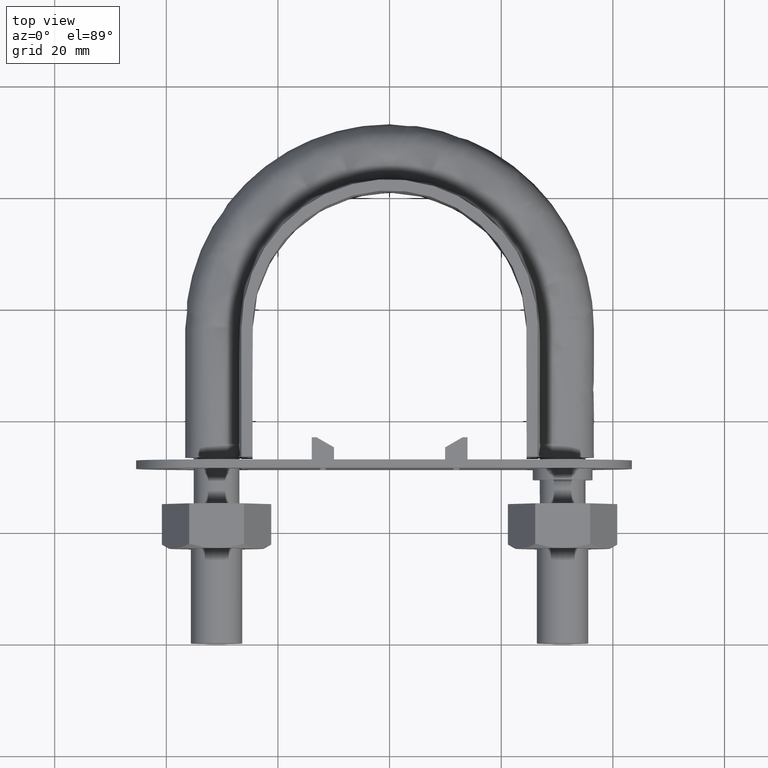
[diagram: clean part render]
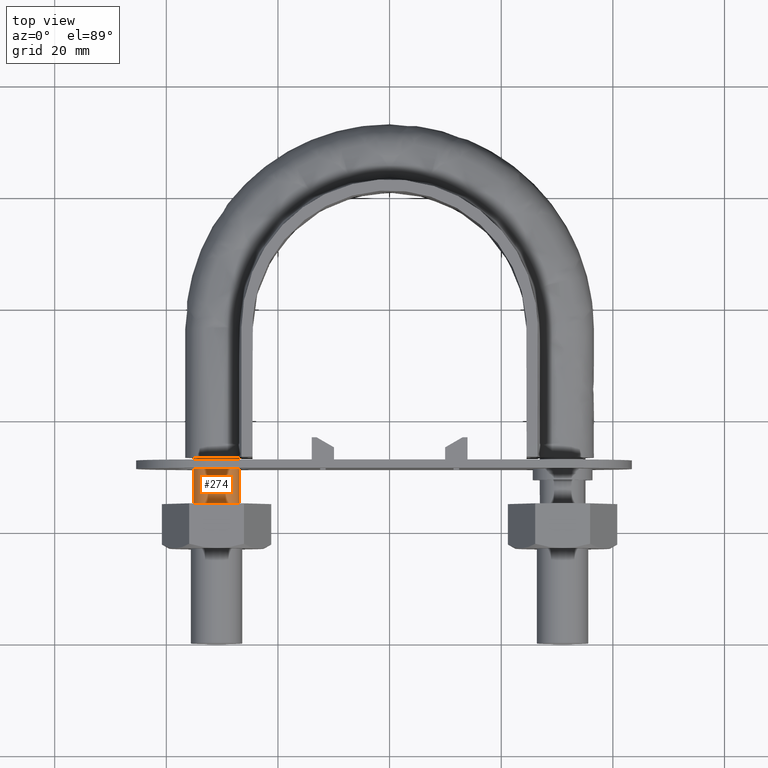
[diagram: same view with one face highlighted and labeled with its STEP entity id]
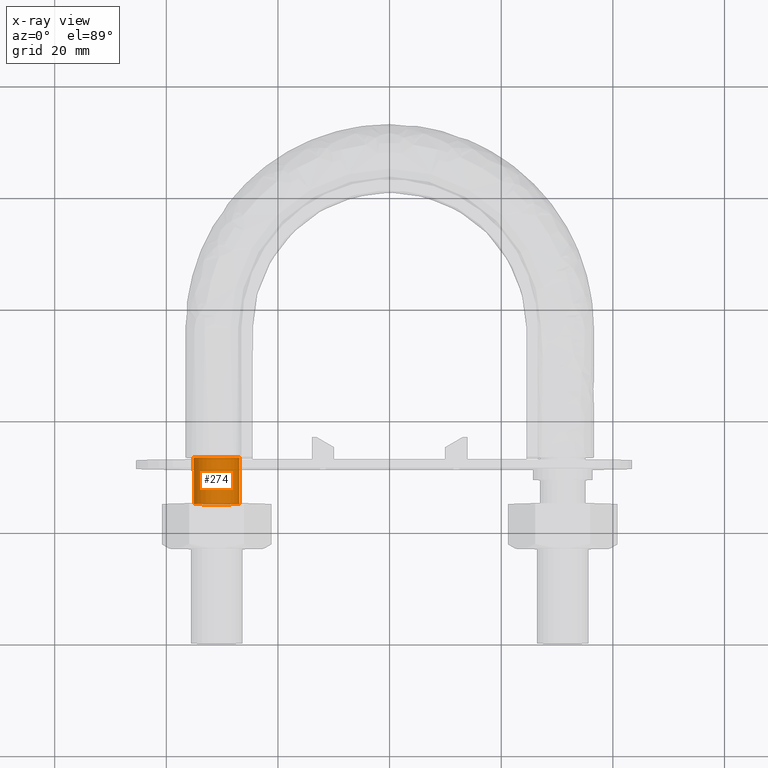
[diagram: x-ray of the same camera — body ghosted, the highlighted face saturated]
A machine part, top view. The second image highlights one B-rep face of the part: STEP entity #274.
The next image is the same camera in x-ray: the body ghosted, the highlighted face saturated — about 0% of this face is hidden behind the body in this view.
In plain terms, the highlighted cylindrical surface (bore or boss wall) has radius 4.1 mm, axis along (-0, -1, -0).
Its self-contained STEP definition (entity closure, byte-faithful):
#274 = ADVANCED_FACE( '', ( #396, #397 ), #398, .T. );
#396 = FACE_OUTER_BOUND( '', #1325, .T. );
#397 = FACE_OUTER_BOUND( '', #1326, .T. );
#398 = CYLINDRICAL_SURFACE( '', #1327, 4.10000000000000 );
#1325 = EDGE_LOOP( '', ( #1768 ) );
#1326 = EDGE_LOOP( '', ( #1769, #1770, #1771, #1772, #1773, #1774, #1775 ) );
#1327 = AXIS2_PLACEMENT_3D( '', #1776, #1777, #1778 );
#1768 = ORIENTED_EDGE( '', *, *, #2531, .T. );
#1769 = ORIENTED_EDGE( '', *, *, #2532, .T. );
#1770 = ORIENTED_EDGE( '', *, *, #2533, .T. );
#1771 = ORIENTED_EDGE( '', *, *, #2534, .T. );
#1772 = ORIENTED_EDGE( '', *, *, #2535, .T. );
#1773 = ORIENTED_EDGE( '', *, *, #2536, .T. );
#1774 = ORIENTED_EDGE( '', *, *, #2537, .T. );
#1775 = ORIENTED_EDGE( '', *, *, #2538, .T. );
#1776 = CARTESIAN_POINT( '', ( -31.0000000000000, 33.3000000000000, 1.03938464280674E-014 ) );
#1777 = DIRECTION( '', ( -2.44921270764475E-016, -1.00000000000000, -3.06151588455594E-016 ) );
#1778 = DIRECTION( '', ( 1.00000000000000, -2.44921270764475E-016, -3.74915180455534E-032 ) );
#2531 = EDGE_CURVE( '', #2775, #2775, #2776, .T. );
#2532 = EDGE_CURVE( '', #2777, #2778, #2779, .T. );
#2533 = EDGE_CURVE( '', #2778, #2780, #2781, .T. );
#2534 = EDGE_CURVE( '', #2780, #2782, #2783, .T. );
#2535 = EDGE_CURVE( '', #2782, #2784, #2785, .T. );
#2536 = EDGE_CURVE( '', #2784, #2786, #2787, .T. );
#2537 = EDGE_CURVE( '', #2786, #2788, #2789, .T. );
#2538 = EDGE_CURVE( '', #2788, #2777, #2790, .T. );
#2775 = VERTEX_POINT( '', #3361 );
#2776 = CIRCLE( '', #3362, 4.10000000000000 );
#2777 = VERTEX_POINT( '', #3363 );
#2778 = VERTEX_POINT( '', #3364 );
#2779 = CIRCLE( '', #3365, 4.10000000000000 );
#2780 = VERTEX_POINT( '', #3366 );
#2781 = CIRCLE( '', #3367, 4.10000000000000 );
#2782 = VERTEX_POINT( '', #3368 );
#2783 = CIRCLE( '', #3369, 4.10000000000000 );
#2784 = VERTEX_POINT( '', #3370 );
#2785 = CIRCLE( '', #3371, 4.10000000000000 );
#2786 = VERTEX_POINT( '', #3372 );
#2787 = CIRCLE( '', #3373, 4.10000000000000 );
#2788 = VERTEX_POINT( '', #3374 );
#2789 = CIRCLE( '', #3375, 4.10000000000000 );
#2790 = CIRCLE( '', #3376, 4.10000000000000 );
#3361 = CARTESIAN_POINT( '', ( -31.0000000000000, 25.0000000000000, 4.10000000000001 ) );
#3362 = AXIS2_PLACEMENT_3D( '', #3999, #4000, #4001 );
#3363 = CARTESIAN_POINT( '', ( -26.9000000000000, 33.3000000000000, 5.33492735711505E-014 ) );
#3364 = CARTESIAN_POINT( '', ( -28.4436918123920, 33.3000000000000, 3.20550907812911 ) );
#3365 = AXIS2_PLACEMENT_3D( '', #4002, #4003, #4004 );
#3366 = CARTESIAN_POINT( '', ( -31.9123358292377, 33.3000000000000, 3.99720443994166 ) );
#3367 = AXIS2_PLACEMENT_3D( '', #4005, #4006, #4007 );
#3368 = CARTESIAN_POINT( '', ( -34.6939723584000, 33.3000000000000, 1.77892333038180 ) );
#3369 = AXIS2_PLACEMENT_3D( '', #4008, #4009, #4010 );
#3370 = CARTESIAN_POINT( '', ( -34.6939723583862, 33.3000000000000, -1.77892333041036 ) );
#3371 = AXIS2_PLACEMENT_3D( '', #4011, #4012, #4013 );
#3372 = CARTESIAN_POINT( '', ( -31.9123358292209, 33.3000000000000, -3.99720443994546 ) );
#3373 = AXIS2_PLACEMENT_3D( '', #4014, #4015, #4016 );
#3374 = CARTESIAN_POINT( '', ( -28.4436918123794, 33.3000000000000, -3.20550907811911 ) );
#3375 = AXIS2_PLACEMENT_3D( '', #4017, #4018, #4019 );
#3376 = AXIS2_PLACEMENT_3D( '', #4020, #4021, #4022 );
#3999 = CARTESIAN_POINT( '', ( -31.0000000000000, 25.0000000000000, 7.85278824388600E-015 ) );
#4000 = DIRECTION( '', ( 2.44921270764475E-016, 1.00000000000000, 3.06151588455594E-016 ) );
#4001 = DIRECTION( '', ( -3.74915180455534E-032, -3.06151588455594E-016, 1.00000000000000 ) );
#4002 = CARTESIAN_POINT( '', ( -31.0000000000000, 33.3000000000000, 1.03938464280674E-014 ) );
#4003 = DIRECTION( '', ( -2.44921270764475E-016, -1.00000000000000, -3.06151588455594E-016 ) );
#4004 = DIRECTION( '', ( 1.00000000000000, -2.44921270764475E-016, -3.74915180455534E-032 ) );
#4005 = CARTESIAN_POINT( '', ( -31.0000000000000, 33.3000000000000, 1.03938464280674E-014 ) );
#4006 = DIRECTION( '', ( -2.44921270764475E-016, -1.00000000000000, -3.06151588455594E-016 ) );
#4007 = DIRECTION( '', ( 1.00000000000000, -2.44921270764475E-016, -3.74915180455534E-032 ) );
#4008 = CARTESIAN_POINT( '', ( -31.0000000000000, 33.3000000000000, 1.03938464280674E-014 ) );
#4009 = DIRECTION( '', ( -2.44921270764475E-016, -1.00000000000000, -3.06151588455594E-016 ) );
#4010 = DIRECTION( '', ( 1.00000000000000, -2.44921270764475E-016, -3.74915180455534E-032 ) );
#4011 = CARTESIAN_POINT( '', ( -31.0000000000000, 33.3000000000000, 1.03938464280674E-014 ) );
#4012 = DIRECTION( '', ( -2.44921270764475E-016, -1.00000000000000, -3.06151588455594E-016 ) );
#4013 = DIRECTION( '', ( 1.00000000000000, -2.44921270764475E-016, -3.74915180455534E-032 ) );
#4014 = CARTESIAN_POINT( '', ( -31.0000000000000, 33.3000000000000, 1.03938464280674E-014 ) );
#4015 = DIRECTION( '', ( -2.44921270764475E-016, -1.00000000000000, -3.06151588455594E-016 ) );
#4016 = DIRECTION( '', ( 1.00000000000000, -2.44921270764475E-016, -3.74915180455534E-032 ) );
#4017 = CARTESIAN_POINT( '', ( -31.0000000000000, 33.3000000000000, 1.03938464280674E-014 ) );
#4018 = DIRECTION( '', ( -2.44921270764475E-016, -1.00000000000000, -3.06151588455594E-016 ) );
#4019 = DIRECTION( '', ( 1.00000000000000, -2.44921270764475E-016, -3.74915180455534E-032 ) );
#4020 = CARTESIAN_POINT( '', ( -31.0000000000000, 33.3000000000000, 1.03938464280674E-014 ) );
#4021 = DIRECTION( '', ( -2.44921270764475E-016, -1.00000000000000, -3.06151588455594E-016 ) );
#4022 = DIRECTION( '', ( 1.00000000000000, -2.44921270764475E-016, -3.74915180455534E-032 ) );